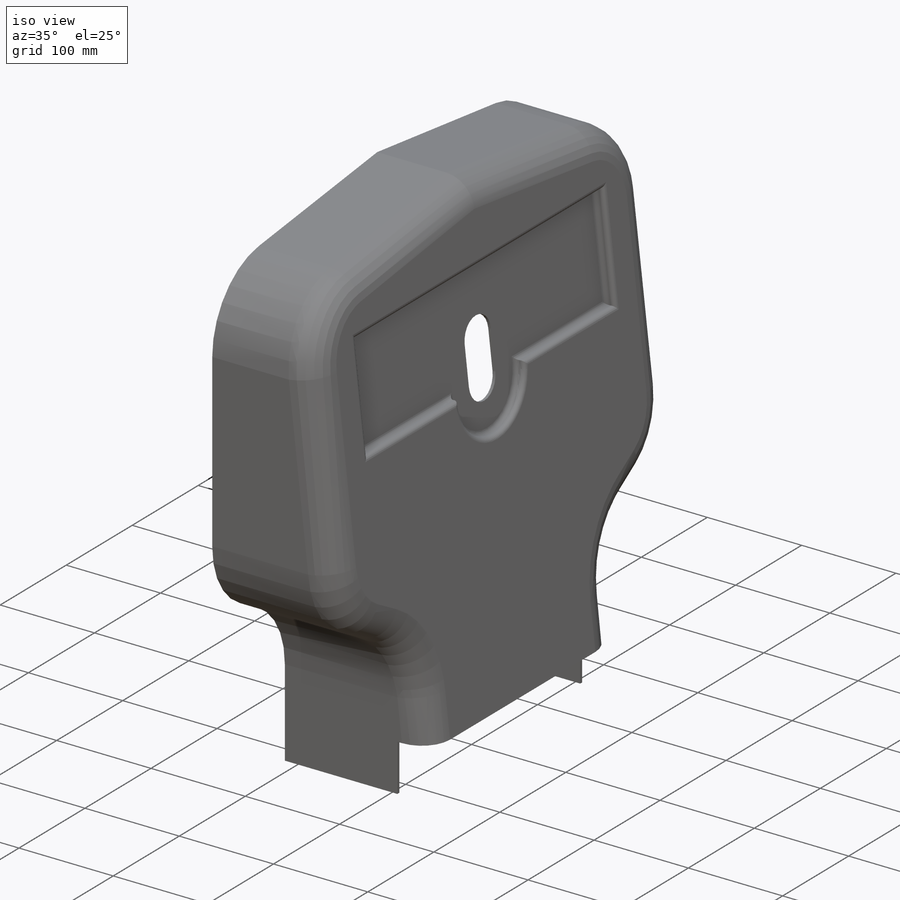
[diagram: iso view]
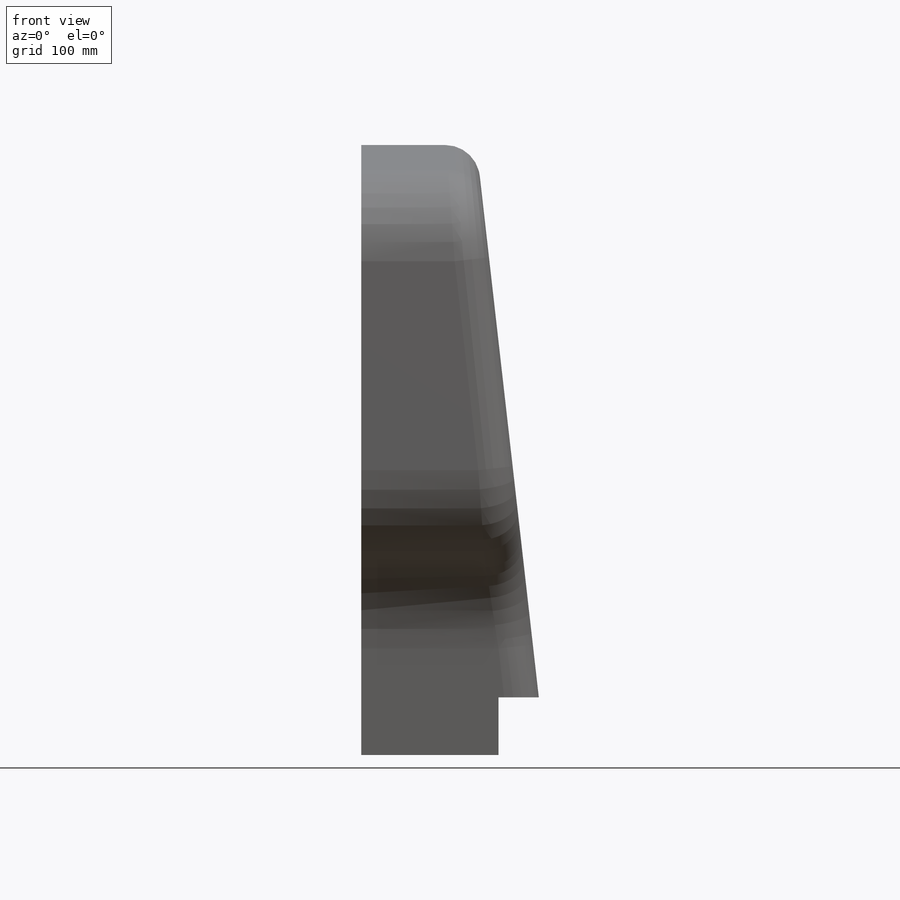
[diagram: front view]
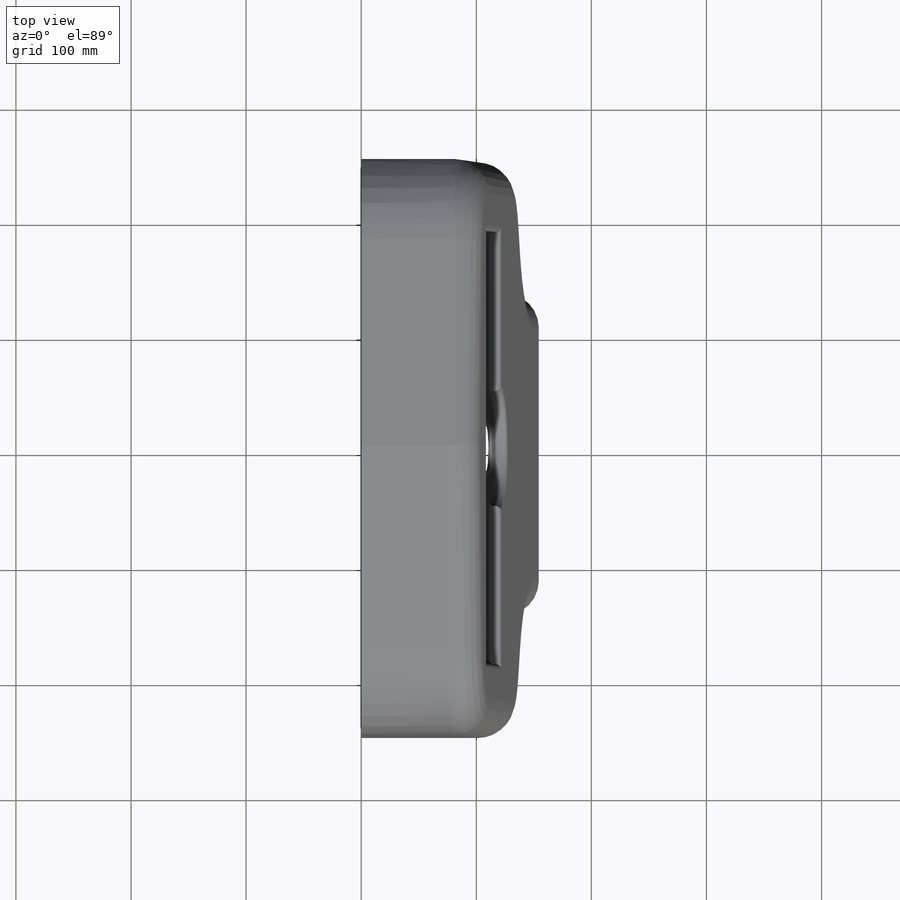
[diagram: top view]
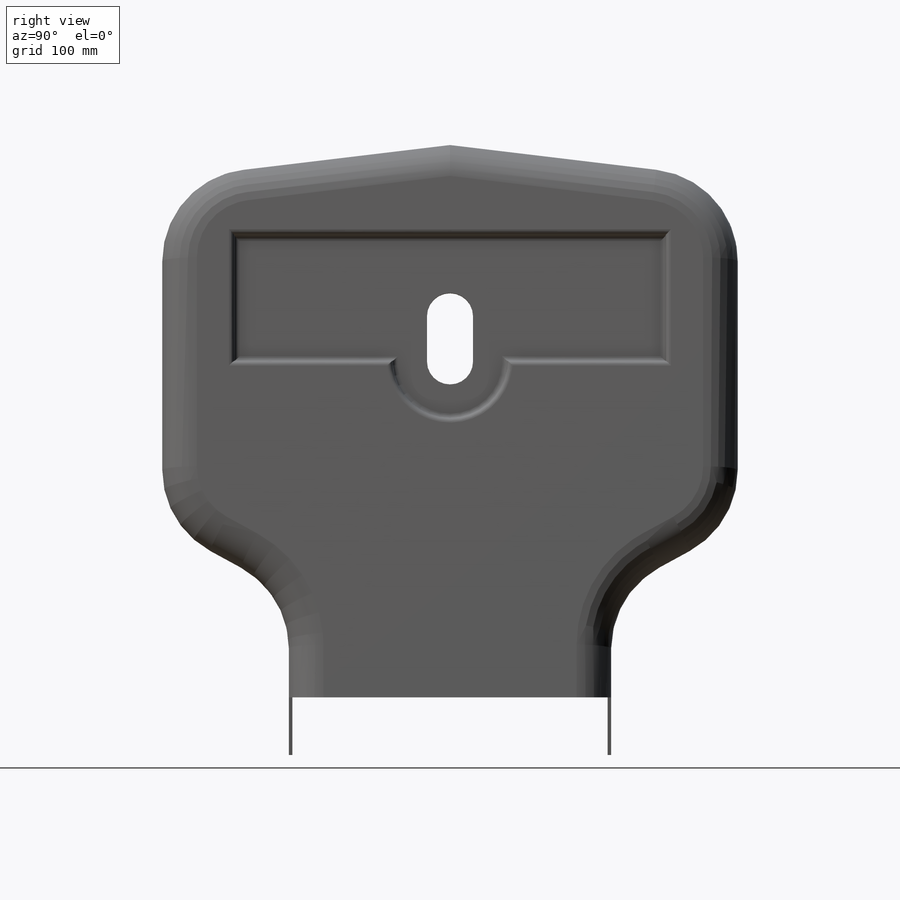
[diagram: right view]
SOLIDWORKS PART (.sldprt)
format: sldprt  version: not decoded by parser v0  size: 392,192 bytes
history: native  units: mm
features: sketch x5, cut_extrude x4, fillet x3, material x1, extrude x1, shell x1 (+13 scaffold rows collapsed)
feature tree (28):
  scaffold x13  (default folders/planes/origin — collapsed)
  material  "Material <not specified>"
  sketch  "Sketch2"  dims[c1.D1=500.0mm c1.D2=500.0mm c1.D3=140.0mm c1.D4=280.0mm c1.D5=300.0mm c1.D6=247.5mm c2.D6=96.95deg c3.D6=30.0mm]
  extrude  "Boss-Extrude1"  Depth=160mm
  sketch  "Sketch3"  dims[D1=100.0mm D2=50.0mm D3=13.5mm]
  cut_extrude  "Cut-Extrude1"  [1 undecoded]
  fillet  "Fillet2"  Radius=80mm
  fillet  "Fillet1"  Radius=30mm
  sketch  "Sketch4"  dims[c1.D3=50.0mm c1.D1=110.0mm c1.D2=375.0mm c1.D4=137.5mm c2.D4=90.0deg c3.D4=20.0mm]
  cut_extrude  "Cut-Extrude2"  Depth=10mm
  fillet  "Fillet3"  Radius=4.5mm
  shell  "Shell1"  Thickness=3mm
  sketch  "Sketch5"  dims[c1.D2=~25.146758mm c1.D1=40.0mm c2.D2=40.0mm c2.D3=50.0mm]
  cut_extrude  "Cut-Extrude4"  [1 undecoded]
  sketch  "Sketch6"
  cut_extrude  "Cut-Extrude5"  Depth=50mm
decode coverage: 11 of 14 modeling features carry decoded parameters
note: ~ marks probable driven/reference dimensions
note: 2 parameter values undecoded
note: suppression state not decoded; provenance and decode notes live in map.json
